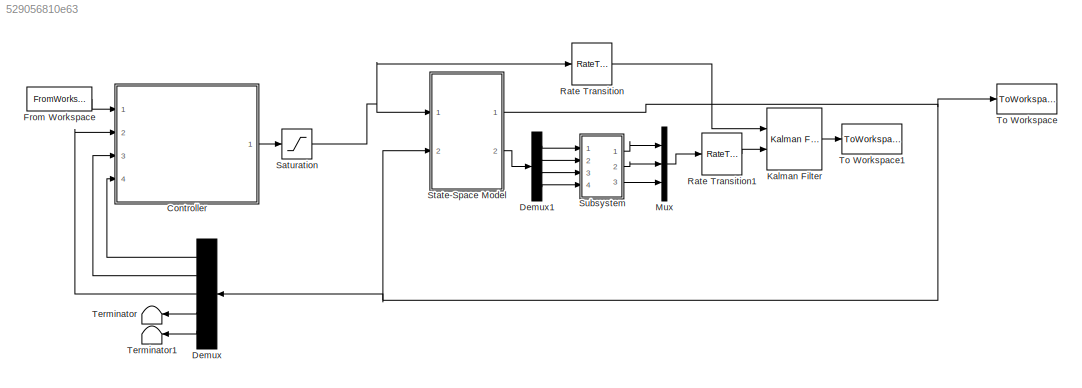
MODEL slx_529056810e63
KIND model
CONFIG AbsTol = auto
CONFIG FixedStep = auto
CONFIG MaxStep = auto
CONFIG MinStep = auto
CONFIG RelTol = 1e-3
CONFIG SampleTimeConstraint = Unconstrained
CONFIG Solver = VariableStepAuto
CONFIG SolverMode = Auto
CONFIG SolverName = VariableStepAuto
CONFIG StartTime = 0.0
CONFIG StopTime = total_time
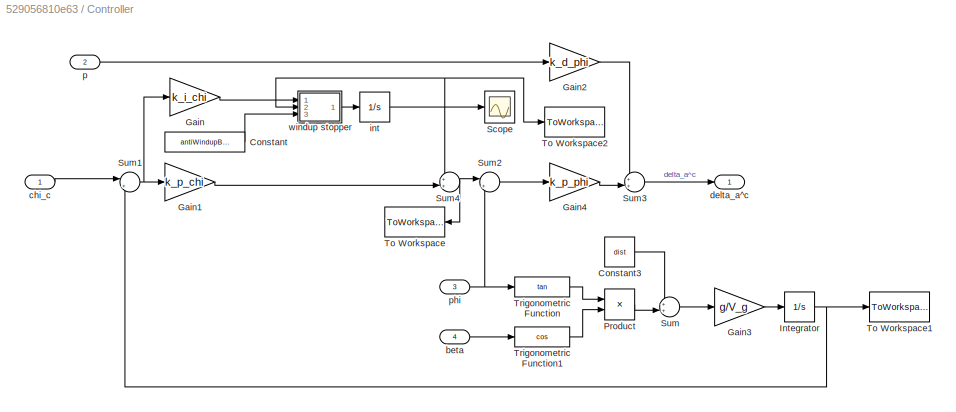
BLOCK [SubSystem] Controller
  Ports = [4, 1]
  RequestExecContextInheritance = off
  Variant = off
BLOCK [Constant] Controller/Constant
  Value = antiWindupBound
BLOCK [Constant] Controller/Constant3
  Value = dist
BLOCK [Gain] Controller/Gain
  Gain = k_i_chi
  OutDataTypeStr = Inherit: Inherit via internal rule
  ParamDataTypeStr = Inherit: Inherit via internal rule
  SaturateOnIntegerOverflow = off
BLOCK [Gain] Controller/Gain1
  Gain = k_p_chi
  OutDataTypeStr = Inherit: Inherit via internal rule
  ParamDataTypeStr = Inherit: Inherit via internal rule
  SaturateOnIntegerOverflow = off
BLOCK [Gain] Controller/Gain2
  Gain = k_d_phi
  OutDataTypeStr = Inherit: Inherit via internal rule
  ParamDataTypeStr = Inherit: Inherit via internal rule
  SaturateOnIntegerOverflow = off
BLOCK [Gain] Controller/Gain3
  Gain = g/V_g
  OutDataTypeStr = Inherit: Inherit via internal rule
  ParamDataTypeStr = Inherit: Inherit via internal rule
  SaturateOnIntegerOverflow = off
BLOCK [Gain] Controller/Gain4
  Gain = k_p_phi
  OutDataTypeStr = Inherit: Inherit via internal rule
  ParamDataTypeStr = Inherit: Inherit via internal rule
  SaturateOnIntegerOverflow = off
BLOCK [Integrator] Controller/Integrator
  Ports = [1, 1]
BLOCK [Product] Controller/Product
  InputSameDT = off
  OutDataTypeStr = Inherit: Inherit via internal rule
  Ports = [2, 1]
  RndMeth = Floor
  SaturateOnIntegerOverflow = off
BLOCK [Scope] Controller/Scope
  Ports = [1]
  ScopeSpecificationString = Simulink.scopes.TimeScopeBlockCfg('CurrentConfiguration', extmgr.ConfigurationSet(extmgr.Configuration('Core','General UI',true),extmgr.Configuration('Core','Source UI',true),extmgr.Configuration('Sources','WiredSimulink',true),extmgr.Configuration('Visuals','Time Domain',true,'SerializedDisplays',{struct('MinYLimReal','-0.00663','MaxYLimReal','0.00668','YLabelReal','','MinYLimMag','0.00000','MaxY...<+1360ch>
BLOCK [Sum] Controller/Sum
  IconShape = round
  InputSameDT = off
  Inputs = ++|
  OutDataTypeStr = Inherit: Inherit via internal rule
  Ports = [2, 1]
  SaturateOnIntegerOverflow = off
BLOCK [Sum] Controller/Sum1
  IconShape = round
  InputSameDT = off
  Inputs = |+-
  OutDataTypeStr = Inherit: Inherit via internal rule
  Ports = [2, 1]
  SaturateOnIntegerOverflow = off
BLOCK [Sum] Controller/Sum2
  IconShape = round
  InputSameDT = off
  Inputs = |+-
  OutDataTypeStr = Inherit: Inherit via internal rule
  Ports = [2, 1]
  SaturateOnIntegerOverflow = off
BLOCK [Sum] Controller/Sum3
  IconShape = round
  InputSameDT = off
  Inputs = ++|
  OutDataTypeStr = Inherit: Inherit via internal rule
  Ports = [2, 1]
  SaturateOnIntegerOverflow = off
BLOCK [Sum] Controller/Sum4
  IconShape = round
  InputSameDT = off
  Inputs = ++|
  OutDataTypeStr = Inherit: Inherit via internal rule
  Ports = [2, 1]
  SaturateOnIntegerOverflow = off
BLOCK [ToWorkspace] Controller/To Workspace
  FixptAsFi = on
  MaxDataPoints = inf
  Ports = [1]
  SampleTime = -1
  Save2DSignal = 3-D array (concatenate along third dimension)
  SaveFormat = Timeseries
  VariableName = phi_c
BLOCK [ToWorkspace] Controller/To Workspace1
  FixptAsFi = on
  MaxDataPoints = inf
  Ports = [1]
  SampleTime = -1
  Save2DSignal = 3-D array (concatenate along third dimension)
  SaveFormat = Timeseries
  VariableName = chi
BLOCK [ToWorkspace] Controller/To Workspace2
  FixptAsFi = on
  MaxDataPoints = inf
  Ports = [1]
  SampleTime = -1
  Save2DSignal = 3-D array (concatenate along third dimension)
  SaveFormat = Timeseries
  VariableName = intergratorTerm
BLOCK [Trigonometry] Controller/Trigonometric Function
  Operator = tan
  Ports = [1, 1]
BLOCK [Trigonometry] Controller/Trigonometric Function1
  Operator = cos
  Ports = [1, 1]
BLOCK [Inport] Controller/beta
  IconDisplay = Port number
  Port = 4
BLOCK [Inport] Controller/chi_c
  IconDisplay = Port number
BLOCK [Outport] Controller/delta_a^c
  IconDisplay = Port number
BLOCK [Integrator] Controller/int
  Ports = [1, 1]
BLOCK [Inport] Controller/p
  IconDisplay = Port number
  Port = 2
BLOCK [Inport] Controller/phi
  IconDisplay = Port number
  Port = 3
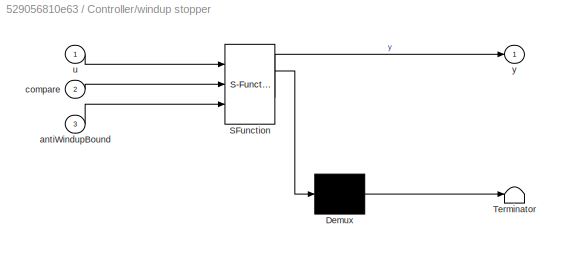
BLOCK [SubSystem] Controller/windup stopper
  ErrorFcn = Stateflow.Translate.translate
  PermitHierarchicalResolution = ExplicitOnly
  Ports = [3, 1]
  RequestExecContextInheritance = off
  SFBlockType = MATLAB Function
  TreatAsAtomicUnit = on
  Variant = off
BLOCK [Demux] Controller/windup stopper/ Demux 
  Outputs = 1
  Ports = [1, 1]
BLOCK [S-Function] Controller/windup stopper/ SFunction 
  EnableBusSupport = on
  FunctionName = sf_sfun
  PortCounts = [3 2]
  Ports = [3, 2]
  SFunctionDeploymentMode = off
  Tag = Stateflow S-Function Sim3e_simulinkKalman 1
BLOCK [Terminator] Controller/windup stopper/ Terminator 
BLOCK [Inport] Controller/windup stopper/antiWindupBound
  IconDisplay = Port number
  Port = 3
BLOCK [Inport] Controller/windup stopper/compare
  IconDisplay = Port number
  Port = 2
BLOCK [Inport] Controller/windup stopper/u
  IconDisplay = Port number
BLOCK [Outport] Controller/windup stopper/y
  IconDisplay = Port number
BLOCK [Demux] Demux
  DisplayOption = bar
  Outputs = 5
  Ports = [1, 5]
BLOCK [Demux] Demux1
  DisplayOption = bar
  Ports = [1, 4]
BLOCK [FromWorkspace] From Workspace
  SampleTime = 0
  VariableName = chi_c
  ZeroCross = on
BLOCK [Reference] Kalman Filter  REF=ctrlSharedLib/Kalman Filter
  Ports = [2, 1]
  SourceBlock = ctrlSharedLib/Kalman Filter
  SourceType = ctrlKalmanFilter
BLOCK [Mux] Mux
  DisplayOption = bar
  Inputs = 3
  Ports = [3, 1]
BLOCK [RateTransition] Rate Transition
  OutPortSampleTime = .01
BLOCK [RateTransition] Rate Transition1
  OutPortSampleTime = .01
BLOCK [Saturate] Saturation
  InputPortMap = u0
  LowerLimit = deg2rad(-25)
  Ports = [1, 1]
  UpperLimit = deg2rad(25)
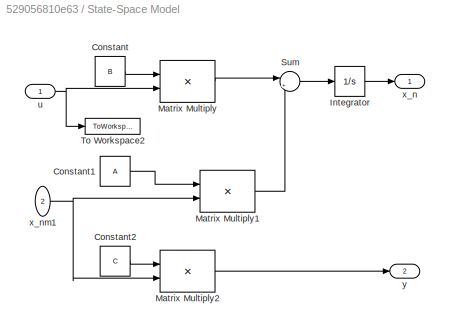
BLOCK [SubSystem] State-Space Model
  Ports = [2, 2]
  RequestExecContextInheritance = off
  Variant = off
BLOCK [Constant] State-Space Model/Constant
  Value = B
BLOCK [Constant] State-Space Model/Constant1
  Value = A
BLOCK [Constant] State-Space Model/Constant2
  Value = C
BLOCK [Integrator] State-Space Model/Integrator
  Ports = [1, 1]
BLOCK [Product] State-Space Model/Matrix Multiply
  InputSameDT = off
  Multiplication = Matrix(*)
  OutDataTypeStr = Inherit: Inherit via internal rule
  Ports = [2, 1]
  RndMeth = Floor
  SaturateOnIntegerOverflow = off
BLOCK [Product] State-Space Model/Matrix Multiply1
  InputSameDT = off
  Multiplication = Matrix(*)
  OutDataTypeStr = Inherit: Inherit via internal rule
  Ports = [2, 1]
  RndMeth = Floor
  SaturateOnIntegerOverflow = off
BLOCK [Product] State-Space Model/Matrix Multiply2
  InputSameDT = off
  Multiplication = Matrix(*)
  OutDataTypeStr = Inherit: Inherit via internal rule
  Ports = [2, 1]
  RndMeth = Floor
  SaturateOnIntegerOverflow = off
BLOCK [Sum] State-Space Model/Sum
  IconShape = round
  InputSameDT = off
  Inputs = |++
  OutDataTypeStr = Inherit: Inherit via internal rule
  Ports = [2, 1]
  SaturateOnIntegerOverflow = off
BLOCK [ToWorkspace] State-Space Model/To Workspace2
  FixptAsFi = on
  MaxDataPoints = inf
  Ports = [1]
  SampleTime = -1
  Save2DSignal = 3-D array (concatenate along third dimension)
  SaveFormat = Timeseries
  VariableName = delta_a_c
BLOCK [Inport] State-Space Model/u
  IconDisplay = Port number
BLOCK [Outport] State-Space Model/x_n
  IconDisplay = Port number
BLOCK [Inport] State-Space Model/x_nm1
  IconDisplay = Port number
  Port = 2
BLOCK [Outport] State-Space Model/y
  IconDisplay = Port number
  Port = 2
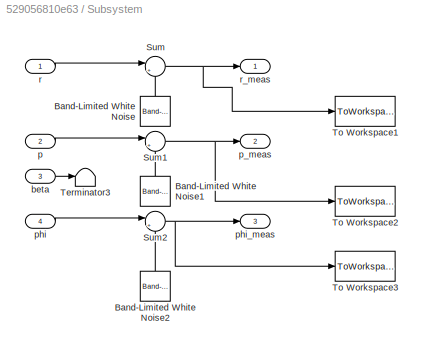
BLOCK [SubSystem] Subsystem
  Ports = [4, 3]
  RequestExecContextInheritance = off
  Variant = off
BLOCK [Reference] Subsystem/Band-Limited White Noise  REF=simulink/Sources/Band-Limited
White Noise
  Ports = [0, 1]
  SourceBlock = simulink/Sources/Band-Limited\nWhite Noise
  SourceType = Band-Limited White Noise.
BLOCK [Reference] Subsystem/Band-Limited White Noise1  REF=simulink/Sources/Band-Limited
White Noise
  Ports = [0, 1]
  SourceBlock = simulink/Sources/Band-Limited\nWhite Noise
  SourceType = Band-Limited White Noise.
BLOCK [Reference] Subsystem/Band-Limited White Noise2  REF=simulink/Sources/Band-Limited
White Noise
  Ports = [0, 1]
  SourceBlock = simulink/Sources/Band-Limited\nWhite Noise
  SourceType = Band-Limited White Noise.
BLOCK [Sum] Subsystem/Sum
  IconShape = round
  InputSameDT = off
  Inputs = |++
  OutDataTypeStr = Inherit: Inherit via internal rule
  Ports = [2, 1]
  SaturateOnIntegerOverflow = off
BLOCK [Sum] Subsystem/Sum1
  IconShape = round
  InputSameDT = off
  Inputs = |++
  OutDataTypeStr = Inherit: Inherit via internal rule
  Ports = [2, 1]
  SaturateOnIntegerOverflow = off
BLOCK [Sum] Subsystem/Sum2
  IconShape = round
  InputSameDT = off
  Inputs = |++
  OutDataTypeStr = Inherit: Inherit via internal rule
  Ports = [2, 1]
  SaturateOnIntegerOverflow = off
BLOCK [Terminator] Subsystem/Terminator3
BLOCK [ToWorkspace] Subsystem/To Workspace1
  FixptAsFi = on
  MaxDataPoints = inf
  Ports = [1]
  SampleTime = -1
  Save2DSignal = 3-D array (concatenate along third dimension)
  SaveFormat = Timeseries
  VariableName = r_meas
BLOCK [ToWorkspace] Subsystem/To Workspace2
  FixptAsFi = on
  MaxDataPoints = inf
  Ports = [1]
  SampleTime = -1
  Save2DSignal = 3-D array (concatenate along third dimension)
  SaveFormat = Timeseries
  VariableName = p_meas
BLOCK [ToWorkspace] Subsystem/To Workspace3
  FixptAsFi = on
  MaxDataPoints = inf
  Ports = [1]
  SampleTime = -1
  Save2DSignal = 3-D array (concatenate along third dimension)
  SaveFormat = Timeseries
  VariableName = phi_meas
BLOCK [Inport] Subsystem/beta
  IconDisplay = Port number
  Port = 3
BLOCK [Inport] Subsystem/p
  IconDisplay = Port number
  Port = 2
BLOCK [Outport] Subsystem/p_meas
  IconDisplay = Port number
  Port = 2
BLOCK [Inport] Subsystem/phi 
  IconDisplay = Port number
  Port = 4
BLOCK [Outport] Subsystem/phi_meas
  IconDisplay = Port number
  Port = 3
BLOCK [Inport] Subsystem/r
  IconDisplay = Port number
BLOCK [Outport] Subsystem/r_meas
  IconDisplay = Port number
BLOCK [Terminator] Terminator
BLOCK [Terminator] Terminator1
BLOCK [ToWorkspace] To Workspace
  FixptAsFi = on
  MaxDataPoints = inf
  Ports = [1]
  SampleTime = -1
  Save2DSignal = 3-D array (concatenate along third dimension)
  SaveFormat = Timeseries
  VariableName = x
BLOCK [ToWorkspace] To Workspace1
  FixptAsFi = on
  MaxDataPoints = inf
  Ports = [1]
  SampleTime = -1
  Save2DSignal = 3-D array (concatenate along third dimension)
  SaveFormat = Timeseries
  VariableName = x_hat
LINE Controller/Constant3:1 -> Controller/Sum:1
LINE Controller/Constant:1 -> Controller/windup stopper:3
LINE Controller/Gain1:1 -> Controller/Sum4:2
LINE Controller/Gain2:1 -> Controller/Sum3:1
LINE Controller/Gain3:1 -> Controller/Integrator:1
LINE Controller/Gain4:1 -> Controller/Sum3:2
LINE Controller/Gain:1 -> Controller/windup stopper:1
NET Controller/Integrator:1 -> Controller/Sum1:2, Controller/To Workspace1:1
LINE Controller/Product:1 -> Controller/Sum:2
NET Controller/Sum1:1 -> Controller/Gain1:1, Controller/Gain:1
LINE Controller/Sum2:1 -> Controller/Gain4:1
LINE Controller/Sum3:1 -> Controller/delta_a^c:1
NET Controller/Sum4:1 -> Controller/Sum2:1, Controller/To Workspace:1
LINE Controller/Sum:1 -> Controller/Gain3:1
LINE Controller/Trigonometric Function1:1 -> Controller/Product:2
LINE Controller/Trigonometric Function:1 -> Controller/Product:1
LINE Controller/beta:1 -> Controller/Trigonometric Function1:1
LINE Controller/chi_c:1 -> Controller/Sum1:1
NET Controller/int:1 -> Controller/Scope:1, Controller/Sum4:1, Controller/To Workspace2:1, Controller/windup stopper:2
LINE Controller/p:1 -> Controller/Gain2:1
NET Controller/phi:1 -> Controller/Sum2:2, Controller/Trigonometric Function:1
LINE Controller/windup stopper:1 -> Controller/int:1
LINE Controller:1 -> Saturation:1
LINE Demux1:1 -> Subsystem:1
LINE Demux1:2 -> Subsystem:2
LINE Demux1:3 -> Subsystem:3
LINE Demux1:4 -> Subsystem:4
LINE Demux:1 -> Controller:4
LINE Demux:2 -> Controller:3
LINE Demux:3 -> Controller:2
LINE Demux:4 -> Terminator:1
LINE Demux:5 -> Terminator1:1
LINE From Workspace:1 -> Controller:1
LINE Kalman Filter:1 -> To Workspace1:1
LINE Mux:1 -> Rate Transition1:1
LINE Rate Transition1:1 -> Kalman Filter:2
LINE Rate Transition:1 -> Kalman Filter:1
NET Saturation:1 -> Rate Transition:1, State-Space Model:1
LINE State-Space Model/Constant1:1 -> State-Space Model/Matrix Multiply1:1
LINE State-Space Model/Constant2:1 -> State-Space Model/Matrix Multiply2:1
LINE State-Space Model/Constant:1 -> State-Space Model/Matrix Multiply:1
LINE State-Space Model/Integrator:1 -> State-Space Model/x_n:1
LINE State-Space Model/Matrix Multiply1:1 -> State-Space Model/Sum:2
LINE State-Space Model/Matrix Multiply2:1 -> State-Space Model/y:1
LINE State-Space Model/Matrix Multiply:1 -> State-Space Model/Sum:1
LINE State-Space Model/Sum:1 -> State-Space Model/Integrator:1
NET State-Space Model/u:1 -> State-Space Model/Matrix Multiply:2, State-Space Model/To Workspace2:1
NET State-Space Model/x_nm1:1 -> State-Space Model/Matrix Multiply1:2, State-Space Model/Matrix Multiply2:2
NET State-Space Model:1 -> Demux:1, State-Space Model:2, To Workspace:1
LINE State-Space Model:2 -> Demux1:1
LINE Subsystem/Band-Limited White Noise1:1 -> Subsystem/Sum1:2
LINE Subsystem/Band-Limited White Noise2:1 -> Subsystem/Sum2:2
LINE Subsystem/Band-Limited White Noise:1 -> Subsystem/Sum:2
NET Subsystem/Sum1:1 -> Subsystem/To Workspace2:1, Subsystem/p_meas:1
NET Subsystem/Sum2:1 -> Subsystem/To Workspace3:1, Subsystem/phi_meas:1
NET Subsystem/Sum:1 -> Subsystem/To Workspace1:1, Subsystem/r_meas:1
LINE Subsystem/beta:1 -> Subsystem/Terminator3:1
LINE Subsystem/p:1 -> Subsystem/Sum1:1
LINE Subsystem/phi :1 -> Subsystem/Sum2:1
LINE Subsystem/r:1 -> Subsystem/Sum:1
LINE Subsystem:1 -> Mux:1
LINE Subsystem:2 -> Mux:2
LINE Subsystem:3 -> Mux:3
note: NET lines group one-source signal fan-out (src -> all destinations, sorted); 1:1 wires keep LINE
CHART Controller/windup stopper states=1 transitions=1
  STATE_LABEL 'eML_blk_kernel()'
  STATE_LABEL 'SCRIPT:\nfunction y = fcn(u,compare, antiWindupBound)\n%#codegen\nif((abs(compare) >= antiWindupBound) && sign(u) == sign(compare))\n    y = 0;\nelse\n    y=u;\nend'
